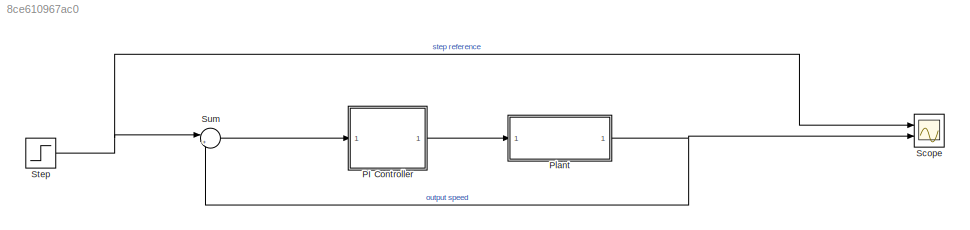
MODEL slx_8ce610967ac0
KIND model
CONFIG AbsTol = auto
CONFIG EnableMultiTasking = off
CONFIG FixedStep = auto
CONFIG MaxStep = auto
CONFIG MinStep = auto
CONFIG RelTol = 1e-3
CONFIG SampleTimeConstraint = Unconstrained
CONFIG SolverName = ode45
CONFIG StartTime = 0.0
CONFIG StopTime = 10.0
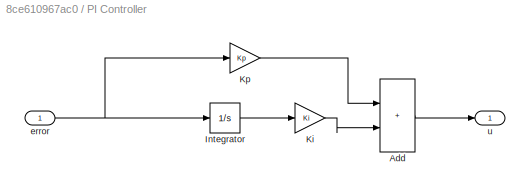
BLOCK [SubSystem] PI Controller
  Ports = [1, 1]
  RequestExecContextInheritance = off
BLOCK [Sum] PI Controller/Add
  IconShape = rectangular
  Ports = [2, 1]
BLOCK [Integrator] PI Controller/Integrator
  Ports = [1, 1]
BLOCK [Gain] PI Controller/Ki
  Gain = Ki
BLOCK [Gain] PI Controller/Kp
  Gain = Kp
BLOCK [Inport] PI Controller/error
BLOCK [Outport] PI Controller/u
BLOCK [ModelReference] Plant
  ModelNameDialog = Plant
  ModelReferenceVersion = 1.6
  Ports = [1, 1]
BLOCK [Scope] Scope
  Floating = off
  NumInputPorts = 2
  Ports = [2]
  ScopeSpecificationString = Simulink.scopes.TimeScopeBlockCfg('CurrentConfiguration', extmgr.ConfigurationSet(extmgr.Configuration('Core','General UI',true),extmgr.Configuration('Core','Source UI',true),extmgr.Configuration('Sources','WiredSimulink',true),extmgr.Configuration('Visuals','Time Domain',true,'SerializedDisplays',{struct('MinYLimReal','-5.00000','MaxYLimReal','45.00000','YLabelReal','','MinYLimMag','0.00000','Max...<+2011ch>
BLOCK [Step] Step
  After = u
  SampleTime = 0
BLOCK [Sum] Sum
  Inputs = |+-
  Ports = [2, 1]
LINE PI Controller/Add:1 -> PI Controller/u:1
LINE PI Controller/Integrator:1 -> PI Controller/Ki:1
LINE PI Controller/Ki:1 -> PI Controller/Add:2
LINE PI Controller/Kp:1 -> PI Controller/Add:1
NET PI Controller/error:1 -> PI Controller/Integrator:1, PI Controller/Kp:1
LINE PI Controller:1 -> Plant:1
NET Plant:1 -> Scope:2, Sum:2
NET Step:1 -> Scope:1, Sum:1
LINE Sum:1 -> PI Controller:1
note: NET lines group one-source signal fan-out (src -> all destinations, sorted); 1:1 wires keep LINE
